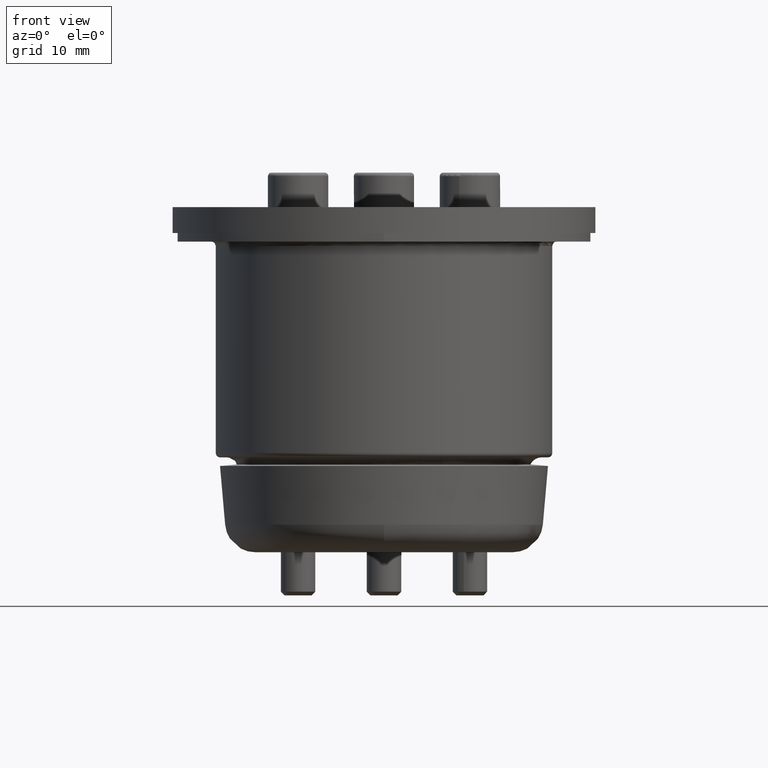
[diagram: clean part render]
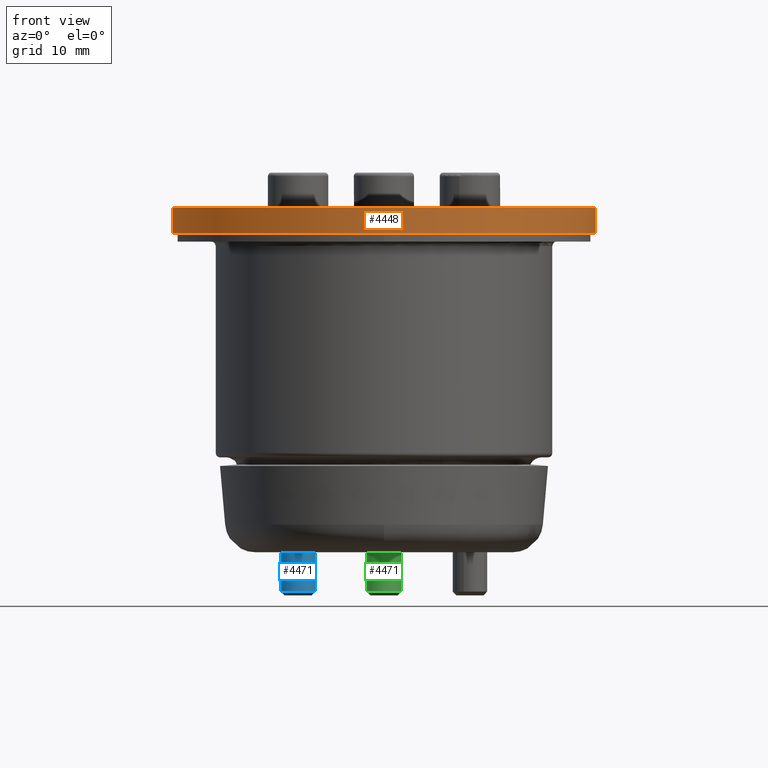
[diagram: same view with three faces highlighted in distinct colors, each labeled with its STEP entity id]
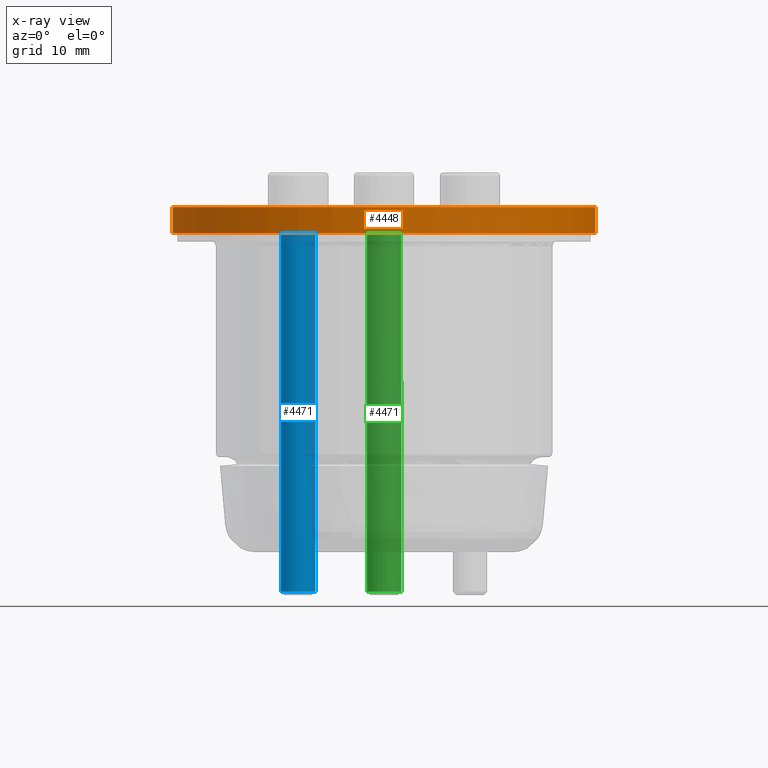
[diagram: x-ray of the same camera — body ghosted, the three highlighted faces saturated]
A machine part, front view with three faces highlighted in distinct colors.
The next image is the same camera in x-ray (body ghosted, the three faces saturated) — at least one of them is partly hidden behind the body in this view.
Their STEP definitions:

[orange] entity #4448 — the highlighted cylindrical surface (bore or boss wall) has radius 24.5 mm, axis along (0, 0, 1).
#309=CYLINDRICAL_SURFACE('',#4811,24.5);
#797=LINE('',#8057,#1143);
#1143=VECTOR('',#5658,23.25);
#1386=FACE_OUTER_BOUND('',#1657,.T.);
#1657=EDGE_LOOP('',(#4041,#4042,#4043,#4044));
#1785=CIRCLE('',#4712,24.5);
#1797=CIRCLE('',#4812,24.5);
#1919=VERTEX_POINT('',#6088);
#2229=VERTEX_POINT('',#8056);
#2390=EDGE_CURVE('',#1919,#1919,#1785,.F.);
#2850=EDGE_CURVE('',#1919,#2229,#797,.T.);
#2851=EDGE_CURVE('',#2229,#2229,#1797,.F.);
#4041=ORIENTED_EDGE('',*,*,#2390,.F.);
#4042=ORIENTED_EDGE('',*,*,#2850,.T.);
#4043=ORIENTED_EDGE('',*,*,#2851,.F.);
#4044=ORIENTED_EDGE('',*,*,#2850,.F.);
#4448=ADVANCED_FACE('',(#1386),#309,.T.);
#4712=AXIS2_PLACEMENT_3D('',#6089,#5164,#5165);
#4811=AXIS2_PLACEMENT_3D('',#8055,#5656,#5657);
#4812=AXIS2_PLACEMENT_3D('',#8058,#5659,#5660);
#5164=DIRECTION('center_axis',(0.,-1.,0.));
#5165=DIRECTION('ref_axis',(-1.,0.,0.));
#5656=DIRECTION('center_axis',(0.,1.,0.));
#5657=DIRECTION('ref_axis',(-1.,0.,0.));
#5658=DIRECTION('',(0.,-1.,0.));
#5659=DIRECTION('center_axis',(0.,1.,0.));
#5660=DIRECTION('ref_axis',(-1.,0.,0.));
#6088=CARTESIAN_POINT('',(24.5,-2.49999999999999,3.00038465791102E-15));
#6089=CARTESIAN_POINT('Origin',(0.,-2.49999999999999,0.));
#8055=CARTESIAN_POINT('Origin',(0.,-4.49999999999999,0.));
#8056=CARTESIAN_POINT('',(24.5,-5.49999999999999,-3.00038465791102E-15));
#8057=CARTESIAN_POINT('',(24.5,-4.49999999999999,-3.00038465791102E-15));
#8058=CARTESIAN_POINT('Origin',(0.,-5.49999999999999,0.));

[blue] entity #4471 — the highlighted cylindrical surface (bore or boss wall) has radius 2 mm, axis along (0, 0, -1).
#320=CYLINDRICAL_SURFACE('',#4881,2.);
#812=LINE('',#8183,#1158);
#1158=VECTOR('',#5813,2.);
#1409=FACE_OUTER_BOUND('',#1695,.T.);
#1695=EDGE_LOOP('',(#4168,#4169,#4170,#4171,#4172,#4173,#4174,#4175));
#1833=CIRCLE('',#4871,2.);
#1834=CIRCLE('',#4872,2.);
#1835=CIRCLE('',#4873,2.);
#1838=CIRCLE('',#4877,2.);
#1839=CIRCLE('',#4878,2.);
#1840=CIRCLE('',#4879,2.);
#2263=VERTEX_POINT('',#8163);
#2264=VERTEX_POINT('',#8164);
#2265=VERTEX_POINT('',#8166);
#2268=VERTEX_POINT('',#8174);
#2269=VERTEX_POINT('',#8176);
#2270=VERTEX_POINT('',#8178);
#2900=EDGE_CURVE('',#2263,#2264,#1833,.T.);
#2901=EDGE_CURVE('',#2265,#2263,#1834,.T.);
#2902=EDGE_CURVE('',#2264,#2265,#1835,.T.);
#2906=EDGE_CURVE('',#2268,#2269,#1838,.T.);
#2907=EDGE_CURVE('',#2269,#2270,#1839,.T.);
#2908=EDGE_CURVE('',#2270,#2268,#1840,.T.);
#2910=EDGE_CURVE('',#2265,#2270,#812,.T.);
#4168=ORIENTED_EDGE('',*,*,#2900,.T.);
#4169=ORIENTED_EDGE('',*,*,#2902,.T.);
#4170=ORIENTED_EDGE('',*,*,#2910,.T.);
#4171=ORIENTED_EDGE('',*,*,#2907,.F.);
#4172=ORIENTED_EDGE('',*,*,#2906,.F.);
#4173=ORIENTED_EDGE('',*,*,#2908,.F.);
#4174=ORIENTED_EDGE('',*,*,#2910,.F.);
#4175=ORIENTED_EDGE('',*,*,#2901,.T.);
#4471=ADVANCED_FACE('',(#1409),#320,.T.);
#4871=AXIS2_PLACEMENT_3D('',#8165,#5790,#5791);
#4872=AXIS2_PLACEMENT_3D('',#8167,#5792,#5793);
#4873=AXIS2_PLACEMENT_3D('',#8168,#5794,#5795);
#4877=AXIS2_PLACEMENT_3D('',#8177,#5803,#5804);
#4878=AXIS2_PLACEMENT_3D('',#8179,#5805,#5806);
#4879=AXIS2_PLACEMENT_3D('',#8180,#5807,#5808);
#4881=AXIS2_PLACEMENT_3D('',#8182,#5811,#5812);
#5790=DIRECTION('center_axis',(-1.,0.,0.));
#5791=DIRECTION('ref_axis',(0.,0.,1.));
#5792=DIRECTION('center_axis',(-1.,0.,0.));
#5793=DIRECTION('ref_axis',(0.,0.,1.));
#5794=DIRECTION('center_axis',(-1.,0.,0.));
#5795=DIRECTION('ref_axis',(0.,0.,1.));
#5803=DIRECTION('center_axis',(-1.,-2.93835360817607E-18,0.));
#5804=DIRECTION('ref_axis',(0.,-1.,1.22464679914735E-16));
#5805=DIRECTION('center_axis',(-1.,-2.93835360817607E-18,0.));
#5806=DIRECTION('ref_axis',(0.,-1.,1.22464679914735E-16));
#5807=DIRECTION('center_axis',(-1.,-2.93835360817607E-18,0.));
#5808=DIRECTION('ref_axis',(0.,-1.,1.22464679914735E-16));
#5811=DIRECTION('center_axis',(1.,2.93835360817607E-18,0.));
#5812=DIRECTION('ref_axis',(0.,1.,0.));
#5813=DIRECTION('',(-1.,-2.93835360817607E-18,0.));
#8163=CARTESIAN_POINT('',(44.570585,0.,2.));
#8164=CARTESIAN_POINT('',(44.570585,-2.44929359829471E-16,-2.));
#8165=CARTESIAN_POINT('Origin',(44.570585,0.,0.));
#8166=CARTESIAN_POINT('',(44.570585,-2.,-2.44929359829471E-16));
#8167=CARTESIAN_POINT('Origin',(44.570585,0.,0.));
#8168=CARTESIAN_POINT('Origin',(44.570585,0.,0.));
#8174=CARTESIAN_POINT('',(0.100000000000002,-3.62169668795696E-16,2.));
#8176=CARTESIAN_POINT('',(0.100000000000002,2.,-4.89858719658942E-16));
#8177=CARTESIAN_POINT('Origin',(0.100000000000002,-1.17240308966225E-16,
0.));
#8178=CARTESIAN_POINT('',(0.100000000000002,-2.,-2.44929359829471E-16));
#8179=CARTESIAN_POINT('Origin',(0.100000000000002,-1.17240308966225E-16,
0.));
#8180=CARTESIAN_POINT('Origin',(0.100000000000002,-1.17240308966225E-16,
0.));
#8182=CARTESIAN_POINT('Origin',(30.,-2.93835360817607E-17,0.));
#8183=CARTESIAN_POINT('',(30.,-2.,-2.44929359829471E-16));

[green] entity #4471 — the highlighted cylindrical surface (bore or boss wall) has radius 2 mm, axis along (-0, -0, -1).
#320=CYLINDRICAL_SURFACE('',#4881,2.);
#812=LINE('',#8183,#1158);
#1158=VECTOR('',#5813,2.);
#1409=FACE_OUTER_BOUND('',#1695,.T.);
#1695=EDGE_LOOP('',(#4168,#4169,#4170,#4171,#4172,#4173,#4174,#4175));
#1833=CIRCLE('',#4871,2.);
#1834=CIRCLE('',#4872,2.);
#1835=CIRCLE('',#4873,2.);
#1838=CIRCLE('',#4877,2.);
#1839=CIRCLE('',#4878,2.);
#1840=CIRCLE('',#4879,2.);
#2263=VERTEX_POINT('',#8163);
#2264=VERTEX_POINT('',#8164);
#2265=VERTEX_POINT('',#8166);
#2268=VERTEX_POINT('',#8174);
#2269=VERTEX_POINT('',#8176);
#2270=VERTEX_POINT('',#8178);
#2900=EDGE_CURVE('',#2263,#2264,#1833,.T.);
#2901=EDGE_CURVE('',#2265,#2263,#1834,.T.);
#2902=EDGE_CURVE('',#2264,#2265,#1835,.T.);
#2906=EDGE_CURVE('',#2268,#2269,#1838,.T.);
#2907=EDGE_CURVE('',#2269,#2270,#1839,.T.);
#2908=EDGE_CURVE('',#2270,#2268,#1840,.T.);
#2910=EDGE_CURVE('',#2265,#2270,#812,.T.);
#4168=ORIENTED_EDGE('',*,*,#2900,.T.);
#4169=ORIENTED_EDGE('',*,*,#2902,.T.);
#4170=ORIENTED_EDGE('',*,*,#2910,.T.);
#4171=ORIENTED_EDGE('',*,*,#2907,.F.);
#4172=ORIENTED_EDGE('',*,*,#2906,.F.);
#4173=ORIENTED_EDGE('',*,*,#2908,.F.);
#4174=ORIENTED_EDGE('',*,*,#2910,.F.);
#4175=ORIENTED_EDGE('',*,*,#2901,.T.);
#4471=ADVANCED_FACE('',(#1409),#320,.T.);
#4871=AXIS2_PLACEMENT_3D('',#8165,#5790,#5791);
#4872=AXIS2_PLACEMENT_3D('',#8167,#5792,#5793);
#4873=AXIS2_PLACEMENT_3D('',#8168,#5794,#5795);
#4877=AXIS2_PLACEMENT_3D('',#8177,#5803,#5804);
#4878=AXIS2_PLACEMENT_3D('',#8179,#5805,#5806);
#4879=AXIS2_PLACEMENT_3D('',#8180,#5807,#5808);
#4881=AXIS2_PLACEMENT_3D('',#8182,#5811,#5812);
#5790=DIRECTION('center_axis',(-1.,0.,0.));
#5791=DIRECTION('ref_axis',(0.,0.,1.));
#5792=DIRECTION('center_axis',(-1.,0.,0.));
#5793=DIRECTION('ref_axis',(0.,0.,1.));
#5794=DIRECTION('center_axis',(-1.,0.,0.));
#5795=DIRECTION('ref_axis',(0.,0.,1.));
#5803=DIRECTION('center_axis',(-1.,-2.93835360817607E-18,0.));
#5804=DIRECTION('ref_axis',(0.,-1.,1.22464679914735E-16));
#5805=DIRECTION('center_axis',(-1.,-2.93835360817607E-18,0.));
#5806=DIRECTION('ref_axis',(0.,-1.,1.22464679914735E-16));
#5807=DIRECTION('center_axis',(-1.,-2.93835360817607E-18,0.));
#5808=DIRECTION('ref_axis',(0.,-1.,1.22464679914735E-16));
#5811=DIRECTION('center_axis',(1.,2.93835360817607E-18,0.));
#5812=DIRECTION('ref_axis',(0.,1.,0.));
#5813=DIRECTION('',(-1.,-2.93835360817607E-18,0.));
#8163=CARTESIAN_POINT('',(44.570585,0.,2.));
#8164=CARTESIAN_POINT('',(44.570585,-2.44929359829471E-16,-2.));
#8165=CARTESIAN_POINT('Origin',(44.570585,0.,0.));
#8166=CARTESIAN_POINT('',(44.570585,-2.,-2.44929359829471E-16));
#8167=CARTESIAN_POINT('Origin',(44.570585,0.,0.));
#8168=CARTESIAN_POINT('Origin',(44.570585,0.,0.));
#8174=CARTESIAN_POINT('',(0.100000000000002,-3.62169668795696E-16,2.));
#8176=CARTESIAN_POINT('',(0.100000000000002,2.,-4.89858719658942E-16));
#8177=CARTESIAN_POINT('Origin',(0.100000000000002,-1.17240308966225E-16,
0.));
#8178=CARTESIAN_POINT('',(0.100000000000002,-2.,-2.44929359829471E-16));
#8179=CARTESIAN_POINT('Origin',(0.100000000000002,-1.17240308966225E-16,
0.));
#8180=CARTESIAN_POINT('Origin',(0.100000000000002,-1.17240308966225E-16,
0.));
#8182=CARTESIAN_POINT('Origin',(30.,-2.93835360817607E-17,0.));
#8183=CARTESIAN_POINT('',(30.,-2.,-2.44929359829471E-16));